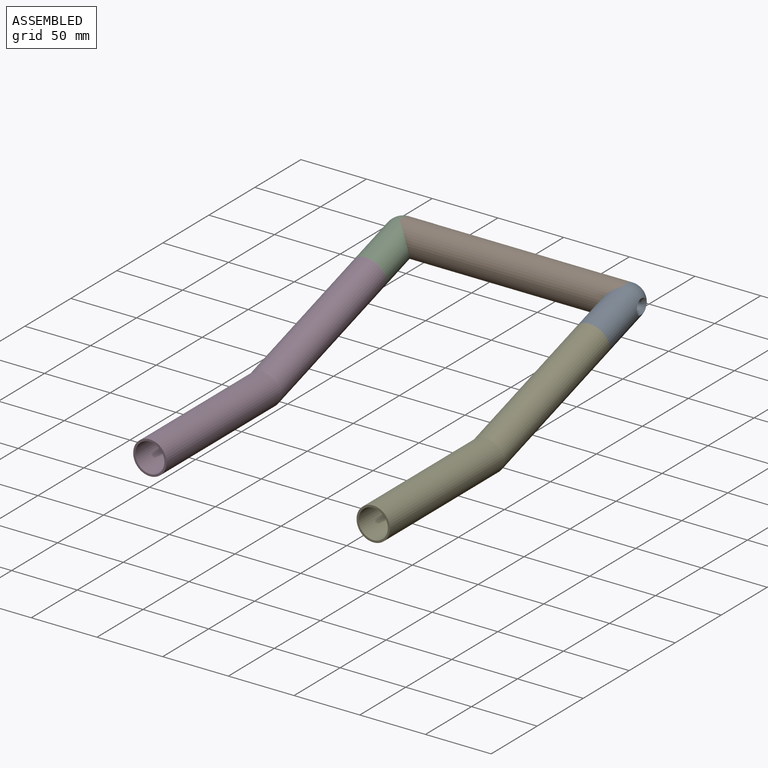
[diagram: assembled view]
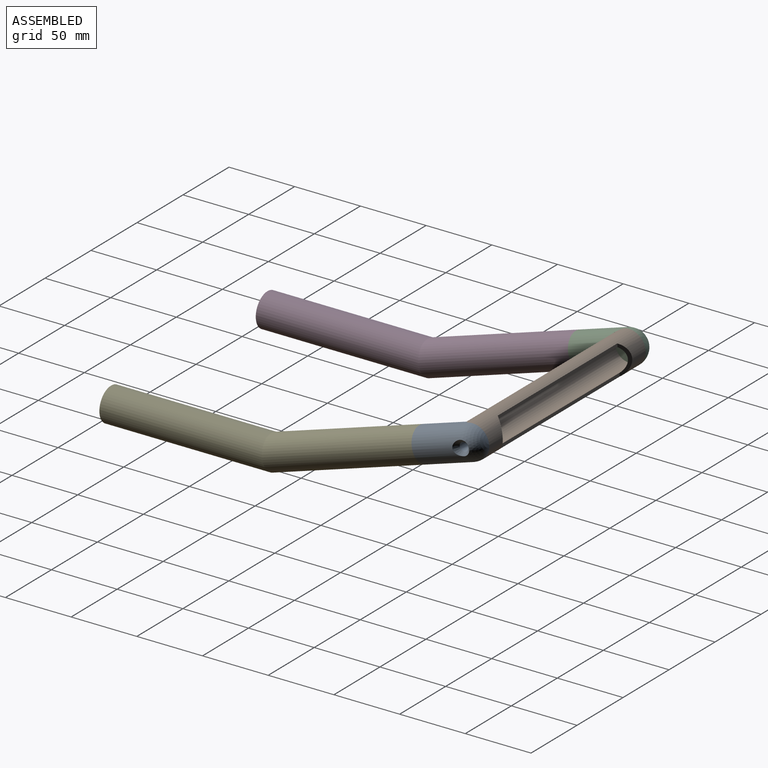
[diagram: assembled view, second angle]
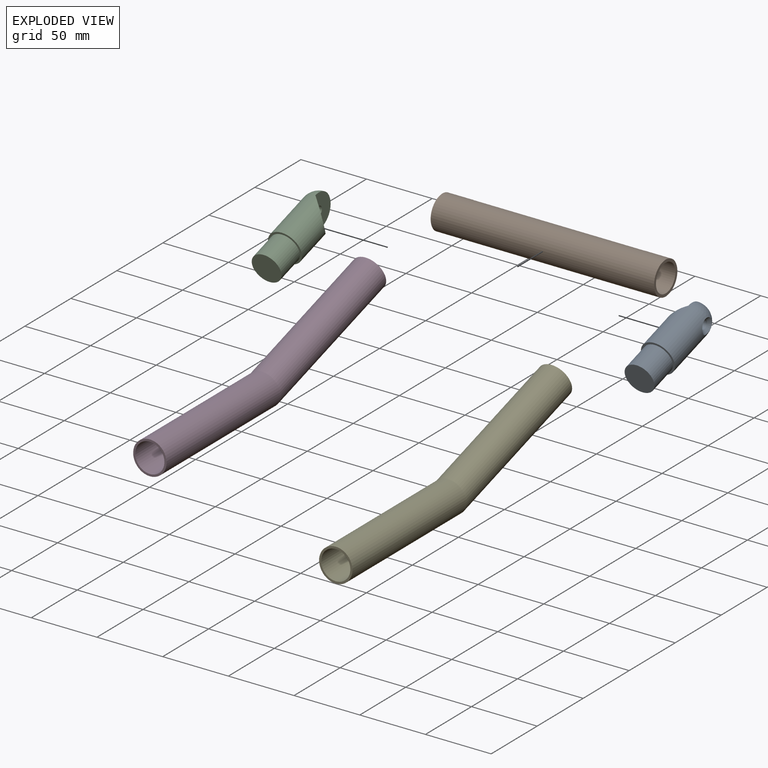
[diagram: exploded view]
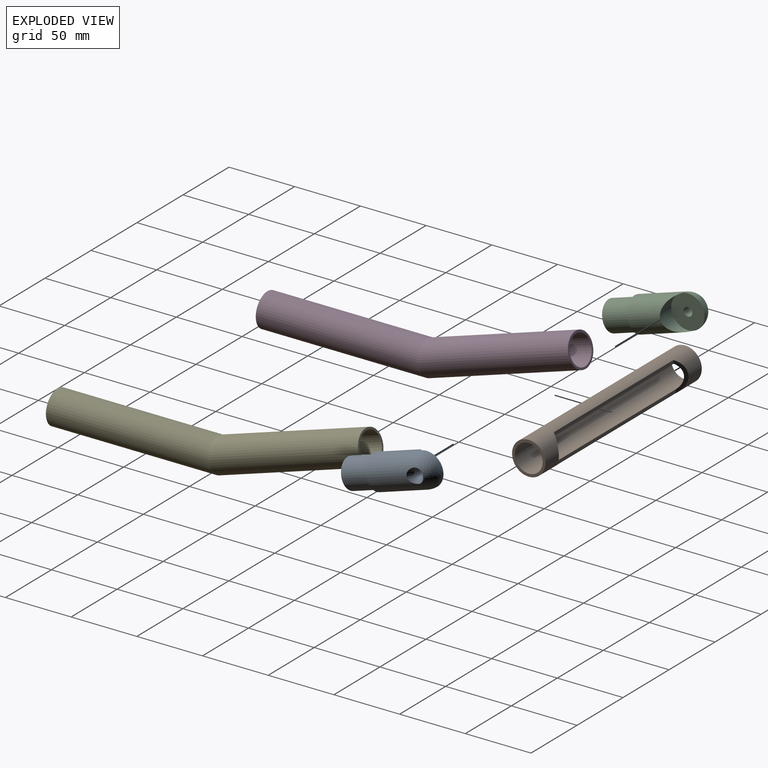
[diagram: exploded view, second angle]
ASSEMBLY  parts=5 mates=6
PART A: 9 faces, bbox 25.4x25.4x72.3 mm
  f0: sphere r=12.7mm, area 457.1mm2, adj f1,f6,f8
  f1: cylinder r=12.7mm len=38.63mm, axis (0,0,1), area 2700.7mm2, adj f0,f2,f5,f8
  f2: plane 25.4x25.4mm, normal (0,0,-1), area 118.8mm2, adj f1,f3
  f3: cylinder r=11.11mm len=22.23mm, axis (0,0,1), area 1466.5mm2, adj f2,f4
  f4: plane 22.23x22.23mm, normal (0,0,-1), area 387.9mm2, adj f3
  f5: cylinder r=12.7mm len=25.4mm, axis (0,-1,0), area 322.6mm2, adj f1,f6
  f6: plane 25.4x25.4mm, normal (0,1,0), area 472.5mm2, adj f0,f5,f7
  f7: cylinder r=3.3mm len=9.28mm, axis (0,-1,0), area 192.4mm2, adj f6,f8
  f8: cone r=3.3mm half-angle=45deg, axis (0,-1,0), area 99.9mm2, adj f0,f1,f7
PART B: 8 faces, bbox 25.4x25.4x170 mm
  f0: cylinder r=10.58mm len=170mm, axis (0,0,-1), area 8545.7mm2, adj f2,f3,f4,f5,f6,f7
  f1: cylinder r=12.7mm len=170mm, axis (0,0,-1), area 9815.2mm2, adj f2,f3,f4,f5,f6,f7
  f2: plane 25.4x25.4mm, normal (0,0,1), area 155.1mm2, adj f0,f1
  f3: plane 25.4x25.4mm, normal (0,0,-1), area 155.1mm2, adj f0,f1
  f4: plane 22.36x6.68mm, normal (0.63,0,-0.77), area 65.4mm2, adj f0,f1,f5,f6
  f5: plane 130x2.48mm, normal (1,0,0), area 322.8mm2, adj f0,f1,f4,f7
  f6: plane 130x2.48mm, normal (1,0,0), area 322.8mm2, adj f0,f1,f4,f7
  f7: plane 22.36x6.68mm, normal (0.63,0,0.77), area 65.4mm2, adj f0,f1,f5,f6
PART C: same geometry as A
PART D: 6 faces, bbox 25.4x242.2x60.9 mm
  f0: cylinder r=11.11mm len=122.76mm, axis (0,0.95,0.3), area 8378.6mm2, adj f1,f2
  f1: cylinder r=11.11mm len=125.61mm, axis (0,1,0), area 8650.7mm2, adj f0,f3
  f2: plane 25.4x24.22mm, normal (0,0.95,0.3), area 118.8mm2, adj f0,f4
  f3: plane 25.4x25.4mm, normal (0,-1,0), area 118.8mm2, adj f1,f5
  f4: cylinder r=12.7mm len=123.95mm, axis (0,0.95,0.3), area 9575.6mm2, adj f2,f5
  f5: cylinder r=12.7mm len=125.85mm, axis (0,1,0), area 9886.6mm2, adj f3,f4
PART E: 6 faces, bbox 25.4x242.2x60.9 mm
  f0: cylinder r=11.11mm len=122.76mm, axis (0,0.95,0.3), area 8378.6mm2, adj f1,f2
  f1: cylinder r=11.11mm len=125.61mm, axis (0,1,0), area 8650.7mm2, adj f0,f3
  f2: plane 25.4x24.22mm, normal (0,0.95,0.3), area 118.8mm2, adj f0,f4
  f3: plane 25.4x25.4mm, normal (0,-1,0), area 118.8mm2, adj f1,f5
  f4: cylinder r=12.7mm len=123.95mm, axis (0,0.95,0.3), area 9575.6mm2, adj f2,f5
  f5: cylinder r=12.7mm len=125.85mm, axis (0,1,0), area 9886.6mm2, adj f3,f4
PLACE A rot(axis=(-0.51,0.51,0.69),110.5deg) t=(84.54,242.14,177.31)mm
PLACE B rot(axis=(0.59,0.55,0.59),122.8deg) t=(-85.46,254.72,181.27)mm
PLACE C rot(axis=(-0.51,-0.51,-0.69),110.5deg) t=(-85.46,242.14,177.31)mm
PLACE D t=(-0.46,53.69,133.57)mm fixed
PLACE E t=(-0.46,53.69,133.57)mm fixed
MATE revolute B.f1 <-> A.f5  axis (-1,0,0) through (84.54,254.72,181.27)mm
MATE planar C.f1 <-> D.f0  axis (0,-0.95,-0.3) through (-85.46,217.87,169.66)mm
MATE planar A.f1 <-> E.f0  axis (0,-0.95,-0.3) through (84.54,217.87,169.66)mm
MATE cylindrical A.f1 <-> E.f0  axis (0,0.95,0.3) through (84.54,207.86,166.5)mm
MATE revolute B.f1 <-> C.f5  axis (-1,0,0) through (-85.46,254.72,181.27)mm
MATE cylindrical C.f1 <-> D.f0  axis (0,0.95,0.3) through (-85.46,207.86,166.5)mm
